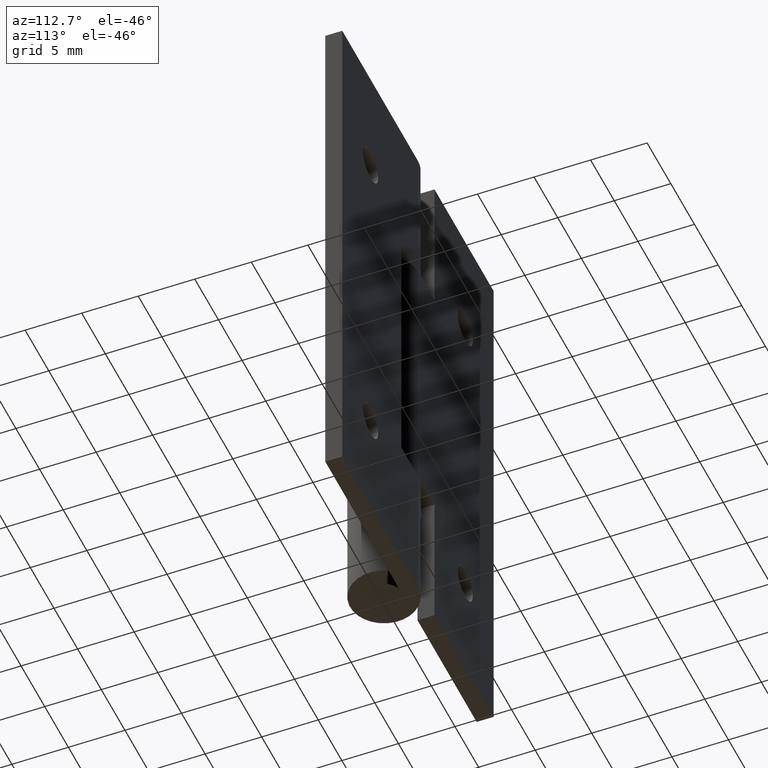
[diagram: clean part render]
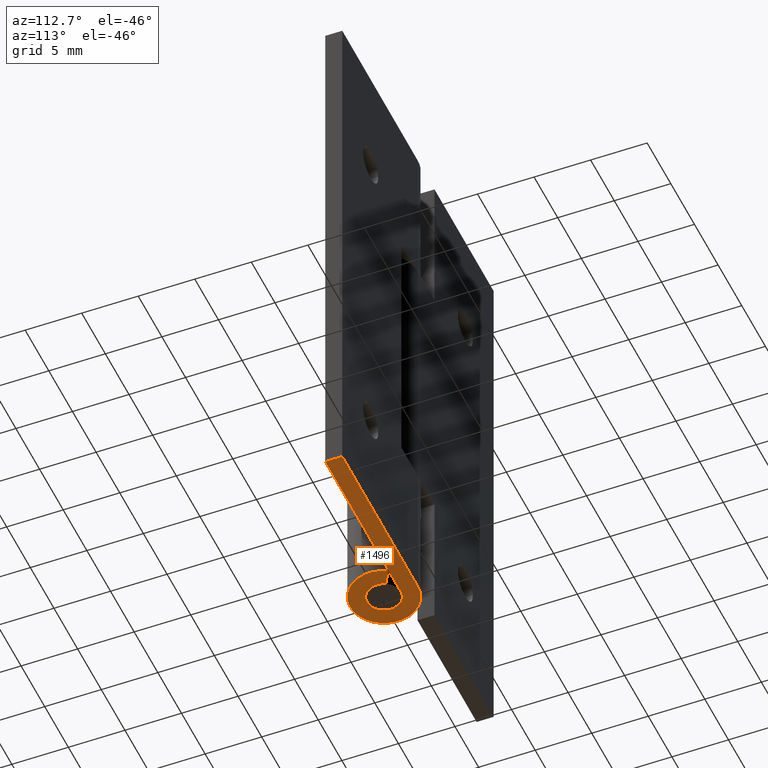
[diagram: same view with one face highlighted and labeled with its STEP entity id]
A machine part, auxiliary view. The second image highlights one B-rep face of the part: STEP entity #1496.
In plain terms, the highlighted face is a freeform B-spline surface patch.
Its self-contained STEP definition (entity closure, byte-faithful):
#1419=CARTESIAN_POINT('',(-3.948997893597384,-3.299492225269541,0.0));
#1420=CARTESIAN_POINT('',(16.949047995650670,-3.299492225269541,0.0));
#1421=CARTESIAN_POINT('',(-3.948997893597384,3.299690265240233,0.0));
#1422=CARTESIAN_POINT('',(16.949047995650670,3.299690265240233,0.0));
#1423=B_SPLINE_SURFACE_WITH_KNOTS('',1,1,((#1419,#1421),(#1420,#1422)),.UNSPECIFIED.,.F.,.F.,.U.,(2,2),(2,2),(0.0,20.898045889248049),(0.0,6.599182490509774),.UNSPECIFIED.);
#1424=CARTESIAN_POINT('',(1.313154598666890,0.725000000000000,0.0));
#1425=VERTEX_POINT('',#1424);
#1426=CARTESIAN_POINT('',(0.0,1.500000000000000,0.0));
#1427=VERTEX_POINT('',#1426);
#1428=CARTESIAN_POINT('',(1.313154598666890,0.725000000000000,0.0));
#1429=CARTESIAN_POINT('',(1.866715792252885,-0.277636451035838,0.0));
#1430=CARTESIAN_POINT('',(1.045325295443045,-1.075776476182162,0.0));
#1431=CARTESIAN_POINT('',(0.223934798633207,-1.873916501328486,0.0));
#1432=CARTESIAN_POINT('',(-0.762397534098844,-1.291801068276382,0.0));
#1433=CARTESIAN_POINT('',(-1.748729866830896,-0.709685635224277,0.0));
#1434=CARTESIAN_POINT('',(-1.447014444021651,0.395157182387861,0.0));
#1435=CARTESIAN_POINT('',(-1.145299021212405,1.500000000000000,0.0));
#1436=CARTESIAN_POINT('',(0.0,1.500000000000000,0.0));
#1444=(BOUNDED_CURVE()B_SPLINE_CURVE(2,(#1428,#1429,#1430,#1431,#1432,#1433,#1434,#1435,#1436),.UNSPECIFIED.,.F.,.U.)B_SPLINE_CURVE_WITH_KNOTS((3,2,2,2,3),(0.0,0.250000000000000,0.500000000000000,0.750000000000000,1.0),.UNSPECIFIED.)CURVE()GEOMETRIC_REPRESENTATION_ITEM()RATIONAL_B_SPLINE_CURVE((1.0,0.794807562115481,1.0,0.794807562115481,1.0,0.794807562115481,1.0,0.794807562115481,1.0))REPRESENTATION_ITEM(''));
#1445=EDGE_CURVE('',#1425,#1427,#1444,.T.);
#1446=ORIENTED_EDGE('',*,*,#1445,.F.);
#1447=CARTESIAN_POINT('',(2.626309197333780,1.450000000000000,0.0));
#1448=VERTEX_POINT('',#1447);
#1449=CARTESIAN_POINT('',(2.626309197333780,1.450000000000000,0.0));
#1450=CARTESIAN_POINT('',(1.313154598666890,0.725000000000000,0.0));
#1451=QUASI_UNIFORM_CURVE('',1,(#1449,#1450),.UNSPECIFIED.,.F.,.U.);
#1452=EDGE_CURVE('',#1448,#1425,#1451,.T.);
#1453=ORIENTED_EDGE('',*,*,#1452,.F.);
#1454=CARTESIAN_POINT('',(0.0,3.0,0.0));
#1455=VERTEX_POINT('',#1454);
#1456=CARTESIAN_POINT('',(2.626309197333780,1.450000000000000,0.0));
#1457=CARTESIAN_POINT('',(3.733431584505770,-0.555272902071675,0.0));
#1458=CARTESIAN_POINT('',(2.090650590886091,-2.151552952364324,0.0));
#1459=CARTESIAN_POINT('',(0.447869597266413,-3.747833002656972,0.0));
#1460=CARTESIAN_POINT('',(-1.524795068197689,-2.583602136552764,0.0));
#1461=CARTESIAN_POINT('',(-3.497459733661792,-1.419371270448555,0.0));
#1462=CARTESIAN_POINT('',(-2.894028888043301,0.790314364775722,0.0));
#1463=CARTESIAN_POINT('',(-2.290598042424809,3.000000000000000,0.0));
#1464=CARTESIAN_POINT('',(0.0,3.0,0.0));
#1472=(BOUNDED_CURVE()B_SPLINE_CURVE(2,(#1456,#1457,#1458,#1459,#1460,#1461,#1462,#1463,#1464),.UNSPECIFIED.,.F.,.U.)B_SPLINE_CURVE_WITH_KNOTS((3,2,2,2,3),(0.0,0.250000000000000,0.500000000000000,0.750000000000000,1.0),.UNSPECIFIED.)CURVE()GEOMETRIC_REPRESENTATION_ITEM()RATIONAL_B_SPLINE_CURVE((1.0,0.794807562115481,1.0,0.794807562115481,1.0,0.794807562115481,1.0,0.794807562115481,1.0))REPRESENTATION_ITEM(''));
#1473=EDGE_CURVE('',#1448,#1455,#1472,.T.);
#1474=ORIENTED_EDGE('',*,*,#1473,.T.);
#1475=CARTESIAN_POINT('',(16.0,3.0,0.0));
#1476=VERTEX_POINT('',#1475);
#1477=CARTESIAN_POINT('',(16.0,3.0,0.0));
#1478=CARTESIAN_POINT('',(0.0,3.0,0.0));
#1479=QUASI_UNIFORM_CURVE('',1,(#1477,#1478),.UNSPECIFIED.,.F.,.U.);
#1480=EDGE_CURVE('',#1476,#1455,#1479,.T.);
#1481=ORIENTED_EDGE('',*,*,#1480,.F.);
#1482=CARTESIAN_POINT('',(16.0,1.500000000000000,0.0));
#1483=VERTEX_POINT('',#1482);
#1484=CARTESIAN_POINT('',(16.0,1.500000000000000,0.0));
#1485=CARTESIAN_POINT('',(16.0,3.0,0.0));
#1486=QUASI_UNIFORM_CURVE('',1,(#1484,#1485),.UNSPECIFIED.,.F.,.U.);
#1487=EDGE_CURVE('',#1483,#1476,#1486,.T.);
#1488=ORIENTED_EDGE('',*,*,#1487,.F.);
#1489=CARTESIAN_POINT('',(0.0,1.500000000000000,0.0));
#1490=CARTESIAN_POINT('',(16.0,1.500000000000000,0.0));
#1491=QUASI_UNIFORM_CURVE('',1,(#1489,#1490),.UNSPECIFIED.,.F.,.U.);
#1492=EDGE_CURVE('',#1427,#1483,#1491,.T.);
#1493=ORIENTED_EDGE('',*,*,#1492,.F.);
#1494=EDGE_LOOP('',(#1446,#1453,#1474,#1481,#1488,#1493));
#1495=FACE_OUTER_BOUND('',#1494,.T.);
#1496=ADVANCED_FACE('',(#1495),#1423,.F.);